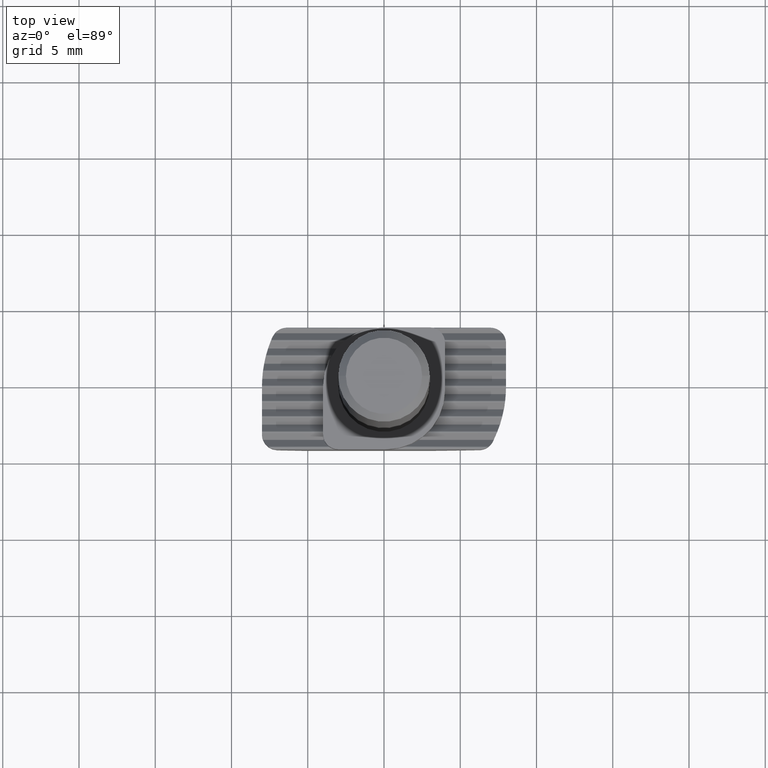
[diagram: clean part render]
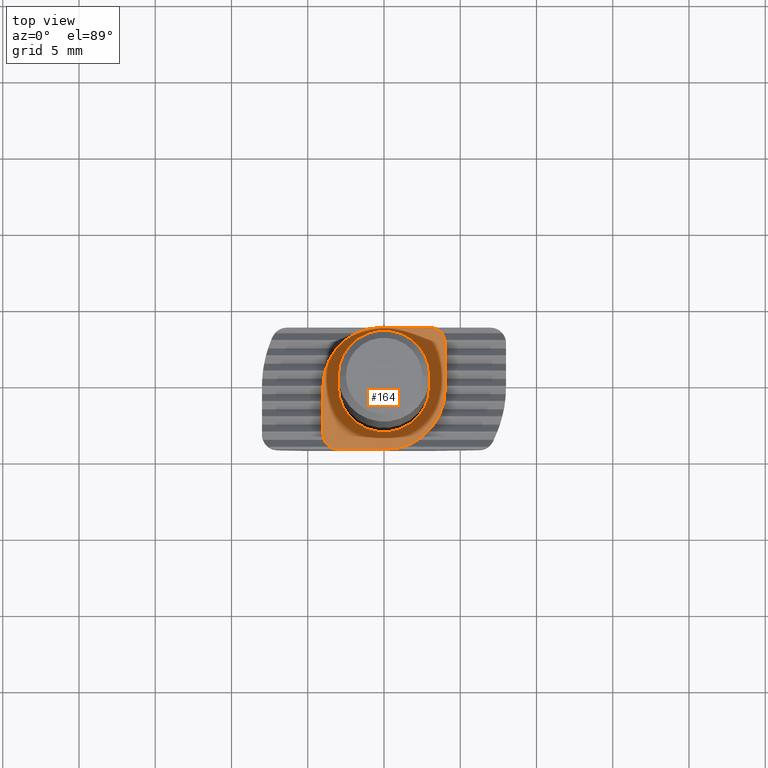
[diagram: same view with one face highlighted and labeled with its STEP entity id]
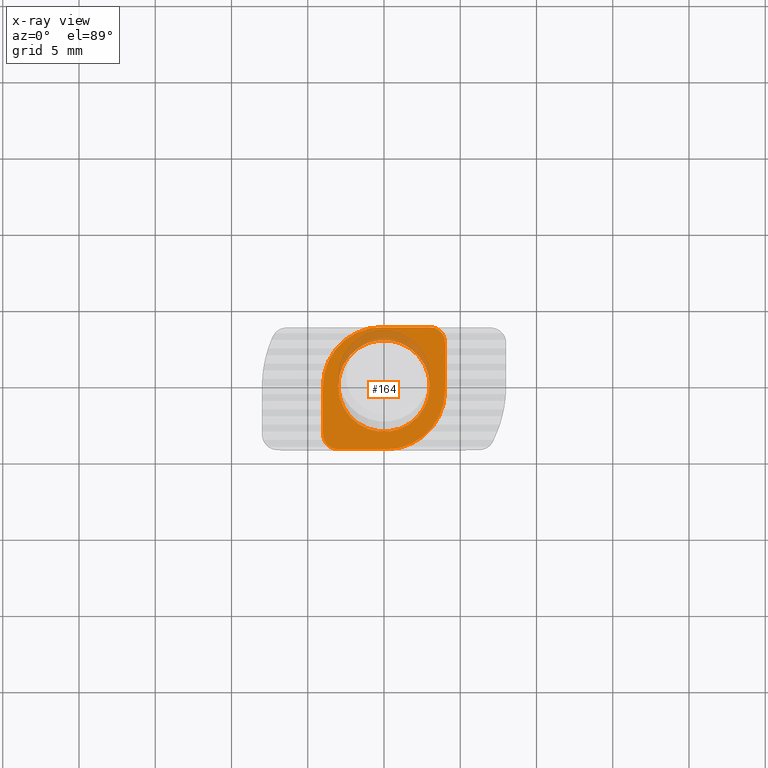
[diagram: x-ray of the same camera — body ghosted, the highlighted face saturated]
A machine part, top view. The second image highlights one B-rep face of the part: STEP entity #164.
The next image is the same camera in x-ray: the body ghosted, the highlighted face saturated — about 14% of this face is hidden behind the body in this view.
In plain terms, the highlighted planar face has unit normal (-0, -0, -1).
Its self-contained STEP definition (entity closure, byte-faithful):
#164=ADVANCED_FACE('NONE',(#400,#401),#402,.F.);
#400=FACE_OUTER_BOUND('',#706,.T.);
#401=FACE_BOUND('',#707,.T.);
#402=PLANE('',#708);
#706=EDGE_LOOP('',(#1106,#1107,#1108,#1109,#1110,#1111,#1112,#1113));
#707=EDGE_LOOP('',(#1114,#1115));
#708=AXIS2_PLACEMENT_3D('',#1116,#1117,#1118);
#1106=ORIENTED_EDGE('',*,*,#2004,.T.);
#1107=ORIENTED_EDGE('',*,*,#2005,.T.);
#1108=ORIENTED_EDGE('',*,*,#2006,.T.);
#1109=ORIENTED_EDGE('',*,*,#2007,.T.);
#1110=ORIENTED_EDGE('',*,*,#2008,.T.);
#1111=ORIENTED_EDGE('',*,*,#2009,.T.);
#1112=ORIENTED_EDGE('',*,*,#2010,.T.);
#1113=ORIENTED_EDGE('',*,*,#2011,.T.);
#1114=ORIENTED_EDGE('',*,*,#2012,.F.);
#1115=ORIENTED_EDGE('',*,*,#1997,.F.);
#1116=CARTESIAN_POINT('',(0.150000000000001,-0.3,6.0));
#1117=DIRECTION('',(-0.0,-0.0,-1.0));
#1118=DIRECTION('',(0.0,-1.0,0.0));
#1997=EDGE_CURVE('NONE',#2451,#2453,#2454,.T.);
#2004=EDGE_CURVE('NONE',#2463,#2464,#2465,.T.);
#2005=EDGE_CURVE('NONE',#2464,#2466,#2467,.T.);
#2006=EDGE_CURVE('NONE',#2466,#2468,#2469,.T.);
#2007=EDGE_CURVE('NONE',#2468,#2470,#2471,.T.);
#2008=EDGE_CURVE('NONE',#2470,#2472,#2473,.T.);
#2009=EDGE_CURVE('NONE',#2472,#2474,#2475,.T.);
#2010=EDGE_CURVE('NONE',#2474,#2476,#2477,.T.);
#2011=EDGE_CURVE('NONE',#2476,#2463,#2478,.T.);
#2012=EDGE_CURVE('NONE',#2453,#2451,#2479,.T.);
#2451=VERTEX_POINT('NONE',#3323);
#2453=VERTEX_POINT('NONE',#3326);
#2454=CIRCLE('',#3327,3.0);
#2463=VERTEX_POINT('NONE',#3339);
#2464=VERTEX_POINT('NONE',#3340);
#2465=LINE('',#3341,#3342);
#2466=VERTEX_POINT('NONE',#3343);
#2467=CIRCLE('',#3344,1.0);
#2468=VERTEX_POINT('NONE',#3345);
#2469=LINE('',#3346,#3347);
#2470=VERTEX_POINT('NONE',#3348);
#2471=CIRCLE('',#3349,3.85);
#2472=VERTEX_POINT('NONE',#3350);
#2473=LINE('',#3351,#3352);
#2474=VERTEX_POINT('NONE',#3353);
#2475=CIRCLE('',#3354,1.0);
#2476=VERTEX_POINT('NONE',#3355);
#2477=LINE('',#3356,#3357);
#2478=CIRCLE('',#3358,3.85);
#2479=CIRCLE('',#3359,3.0);
#3323=CARTESIAN_POINT('',(3.0,3.67394039744206E-016,6.0));
#3326=CARTESIAN_POINT('',(-3.0,0.0,6.0));
#3327=AXIS2_PLACEMENT_3D('',#4718,#4719,#4720);
#3339=CARTESIAN_POINT('',(4.0,-0.299999999999999,6.0));
#3340=CARTESIAN_POINT('',(4.0,2.85,6.0));
#3341=CARTESIAN_POINT('',(4.0,3.85,6.0));
#3342=VECTOR('',#4727,1000.0);
#3343=CARTESIAN_POINT('',(3.0,3.85,6.0));
#3344=AXIS2_PLACEMENT_3D('',#4728,#4729,#4730);
#3345=CARTESIAN_POINT('',(-0.150000000000001,3.85,6.0));
#3346=CARTESIAN_POINT('',(4.0,3.85,6.0));
#3347=VECTOR('',#4731,1000.0);
#3348=CARTESIAN_POINT('',(-4.0,4.57936490515662E-016,6.0));
#3349=AXIS2_PLACEMENT_3D('',#4732,#4733,#4734);
#3350=CARTESIAN_POINT('',(-4.0,-3.15,6.0));
#3351=CARTESIAN_POINT('',(-4.0,-4.87890977618477E-016,6.0));
#3352=VECTOR('',#4735,1000.0);
#3353=CARTESIAN_POINT('',(-3.0,-4.15,6.0));
#3354=AXIS2_PLACEMENT_3D('',#4736,#4737,#4738);
#3355=CARTESIAN_POINT('',(0.150000000000001,-4.15,6.0));
#3356=CARTESIAN_POINT('',(-4.0,-4.15,6.0));
#3357=VECTOR('',#4739,1000.0);
#3358=AXIS2_PLACEMENT_3D('',#4740,#4741,#4742);
#3359=AXIS2_PLACEMENT_3D('',#4743,#4744,#4745);
#4718=CARTESIAN_POINT('',(0.0,0.0,6.0));
#4719=DIRECTION('',(0.0,0.0,1.0));
#4720=DIRECTION('',(-1.0,0.0,0.0));
#4727=DIRECTION('',(-0.0,1.0,-0.0));
#4728=CARTESIAN_POINT('',(3.0,2.85,6.0));
#4729=DIRECTION('',(0.0,0.0,1.0));
#4730=DIRECTION('',(-1.0,0.0,0.0));
#4731=DIRECTION('',(-1.0,0.0,0.0));
#4732=CARTESIAN_POINT('',(-0.15,-1.35525271560688E-017,6.0));
#4733=DIRECTION('',(0.0,0.0,1.0));
#4734=DIRECTION('',(1.0,0.0,0.0));
#4735=DIRECTION('',(4.18005656861881E-016,-1.0,0.0));
#4736=CARTESIAN_POINT('',(-3.0,-3.15,6.0));
#4737=DIRECTION('',(0.0,0.0,1.0));
#4738=DIRECTION('',(-1.0,0.0,0.0));
#4739=DIRECTION('',(1.0,0.0,0.0));
#4740=CARTESIAN_POINT('',(0.150000000000001,-0.3,6.0));
#4741=DIRECTION('',(0.0,0.0,1.0));
#4742=DIRECTION('',(-1.0,0.0,0.0));
#4743=CARTESIAN_POINT('',(0.0,0.0,6.0));
#4744=DIRECTION('',(0.0,0.0,1.0));
#4745=DIRECTION('',(-1.0,0.0,0.0));